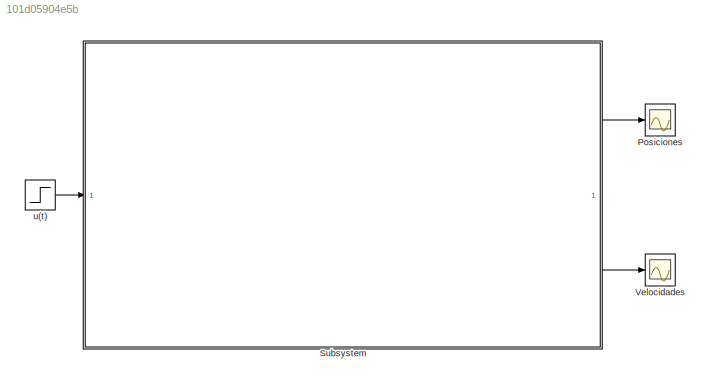
MODEL slx_101d05904e5b
KIND model
CONFIG AbsTol = auto
CONFIG EnableMultiTasking = off
CONFIG FixedStep = auto
CONFIG MaxStep = auto
CONFIG MinStep = auto
CONFIG RelTol = 1e-3
CONFIG SampleTimeConstraint = Unconstrained
CONFIG SolverName = VariableStepAuto
CONFIG StartTime = 0.0
CONFIG StopTime = 10.0
WORKSPACE source: mxarray member
WORKSPACE b = 0.8
WORKSPACE k1 = 1.5
WORKSPACE k2 = 2
WORKSPACE m1 = 2
WORKSPACE m2 = 1
BLOCK [Scope] Posiciones
  Floating = off
  NumInputPorts = 1
  ScopeSpecificationString = Simulink.scopes.TimeScopeBlockCfg('CurrentConfiguration', extmgr.ConfigurationSet(extmgr.Configuration('Core','General UI',true),extmgr.Configuration('Core','Source UI',true),extmgr.Configuration('Sources','WiredSimulink',true),extmgr.Configuration('Visuals','Time Domain',true,'SerializedDisplays',{struct('MinYLimReal','-0.42369','MaxYLimReal','3.81325','YLabelReal','','MinYLimMag','0.00000','MaxY...<+1467ch>
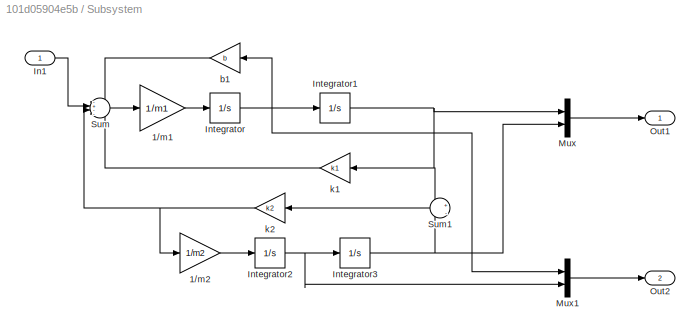
BLOCK [SubSystem] Subsystem
BLOCK [Gain] Subsystem/1//m1
  Gain = 1/m1
  NameLocation = top
BLOCK [Gain] Subsystem/1//m2
  Gain = 1/m2
  NameLocation = top
BLOCK [Inport] Subsystem/In1
BLOCK [Integrator] Subsystem/Integrator
BLOCK [Integrator] Subsystem/Integrator1
BLOCK [Integrator] Subsystem/Integrator2
BLOCK [Integrator] Subsystem/Integrator3
BLOCK [Mux] Subsystem/Mux
  DisplayOption = bar
  Inputs = 2
BLOCK [Mux] Subsystem/Mux1
  DisplayOption = bar
  Inputs = 2
BLOCK [Outport] Subsystem/Out1
BLOCK [Outport] Subsystem/Out2
  Port = 2
BLOCK [Sum] Subsystem/Sum
  Inputs = -+--
BLOCK [Sum] Subsystem/Sum1
  Inputs = +|-
BLOCK [Gain] Subsystem/b1
  Gain = b
  NameLocation = top
BLOCK [Gain] Subsystem/k1
  Gain = k1
  NameLocation = top
BLOCK [Gain] Subsystem/k2
  Gain = k2
  NameLocation = top
BLOCK [Scope] Velocidades
  Floating = off
  NumInputPorts = 1
  ScopeSpecificationString = Simulink.scopes.TimeScopeBlockCfg('CurrentConfiguration', extmgr.ConfigurationSet(extmgr.Configuration('Core','General UI',true),extmgr.Configuration('Core','Source UI',true),extmgr.Configuration('Sources','WiredSimulink',true,'DataLoggingVariableName','ScopeData1'),extmgr.Configuration('Visuals','Time Domain',true,'SerializedDisplays',{struct('MinYLimReal','-0.35933','MaxYLimReal','0.74414','YLab...<+1501ch>
BLOCK [Step] u(t)
  After = 3
  SampleTime = 0
LINE Subsystem/1//m1:1 -> Subsystem/Integrator:1
LINE Subsystem/1//m2:1 -> Subsystem/Integrator2:1
LINE Subsystem/In1:1 -> Subsystem/Sum:2
NET Subsystem/Integrator1:1 -> Subsystem/Mux:1, Subsystem/Sum1:1, Subsystem/k1:1
NET Subsystem/Integrator2:1 -> Subsystem/Integrator3:1, Subsystem/Mux1:2
NET Subsystem/Integrator3:1 -> Subsystem/Mux:2, Subsystem/Sum1:2
NET Subsystem/Integrator:1 -> Subsystem/Integrator1:1, Subsystem/Mux1:1, Subsystem/b1:1
LINE Subsystem/Mux1:1 -> Subsystem/Out2:1
LINE Subsystem/Mux:1 -> Subsystem/Out1:1
LINE Subsystem/Sum1:1 -> Subsystem/k2:1
LINE Subsystem/Sum:1 -> Subsystem/1//m1:1
LINE Subsystem/b1:1 -> Subsystem/Sum:1
LINE Subsystem/k1:1 -> Subsystem/Sum:4
NET Subsystem/k2:1 -> Subsystem/1//m2:1, Subsystem/Sum:3
LINE Subsystem:1 -> Posiciones:1
LINE Subsystem:2 -> Velocidades:1
LINE u(t):1 -> Subsystem:1
note: NET lines group one-source signal fan-out (src -> all destinations, sorted); 1:1 wires keep LINE
